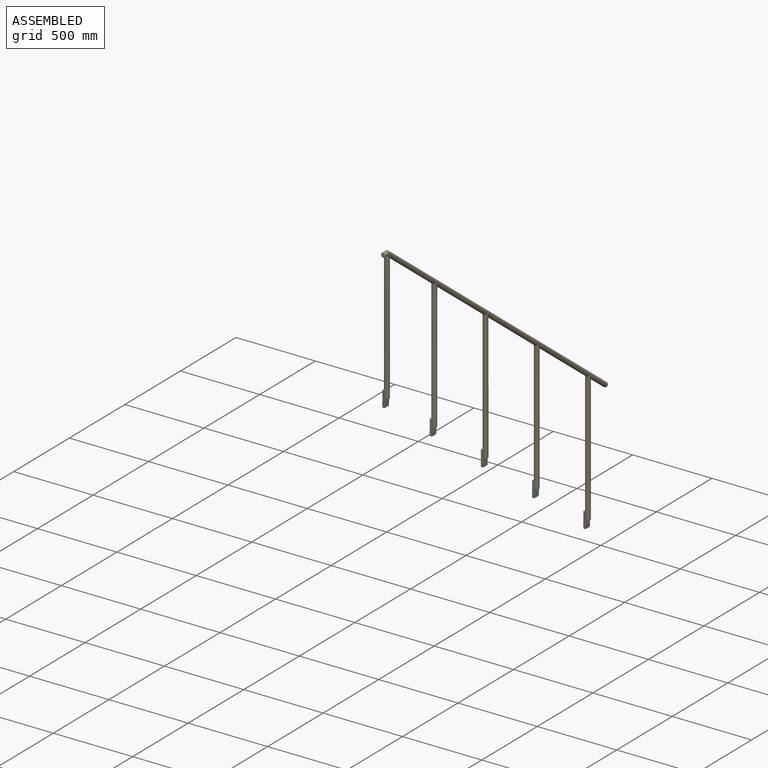
[diagram: assembled view]
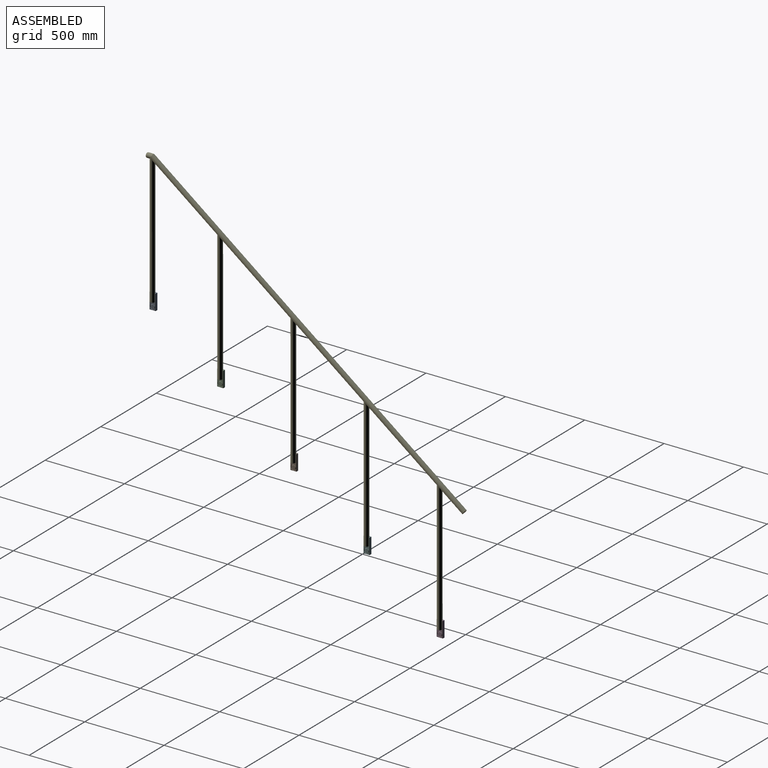
[diagram: assembled view, second angle]
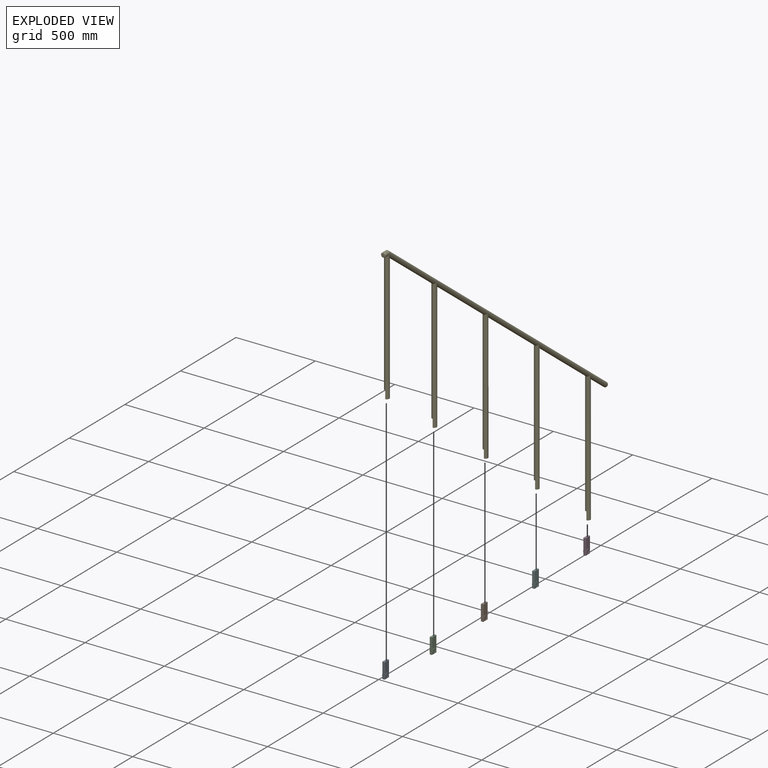
[diagram: exploded view]
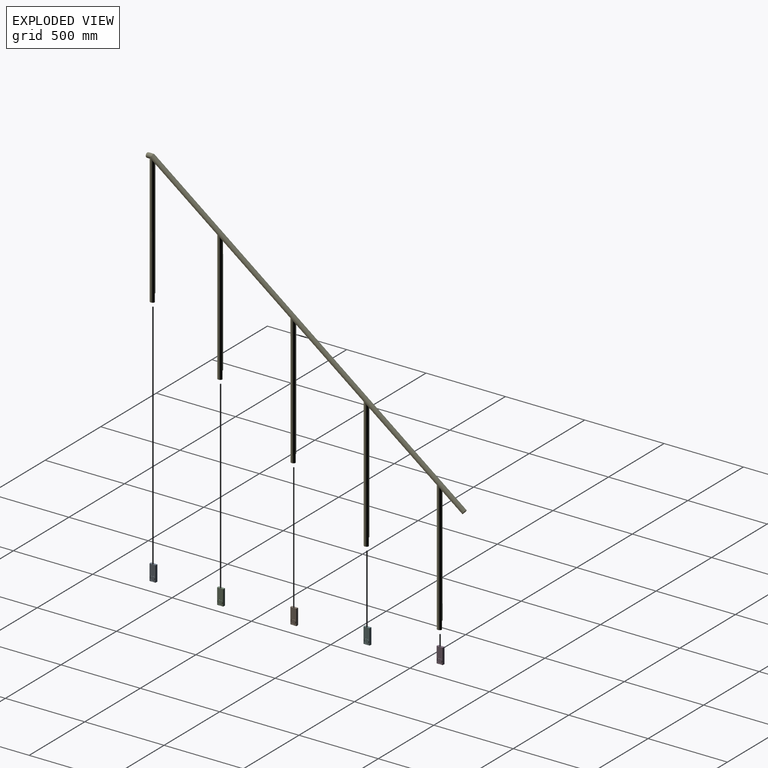
[diagram: exploded view, second angle]
ASSEMBLY  parts=6 mates=5
PART A: 18 faces, bbox 20x40x100 mm
  f0: plane 40x15mm, normal (0,0,1), area 598.3mm2, adj f1,f3,f4,f5,f7,f10
  f1: plane 98x13mm, normal (0,-1,0), area 1274mm2, adj f0,f4,f10,f12
  f2: plane 36x13mm, normal (0,0,-1), area 468mm2, adj f4,f6,f9,f12
  f3: plane 98x13mm, normal (0,1,0), area 1274mm2, adj f0,f4,f6,f7
  f4: plane 100x40mm, normal (1,0,0), area 3291.4mm2, adj f0,f1,f2,f3,f6,f12,f15
  f5: plane 98x36mm, normal (-1,0,0), area 2620.1mm2, adj f0,f7,f9,f10,f13
  f6: cylinder r=2mm len=13mm, axis (1,0,0), area 40.8mm2, adj f2,f3,f4,f8
  f7: cylinder r=2mm len=98mm, axis (0,0,1), area 307.9mm2, adj f0,f3,f5,f8
  f8: sphere r=2mm, area 6.3mm2, adj f6,f7,f9
  f9: cylinder r=2mm len=36mm, axis (0,1,0), area 113.1mm2, adj f2,f5,f8,f11
  f10: cylinder r=2mm len=98mm, axis (0,0,-1), area 307.9mm2, adj f0,f1,f5,f11
  f11: sphere r=2mm, area 6.3mm2, adj f9,f10,f12
  f12: cylinder r=2mm len=13mm, axis (-1,0,0), area 40.8mm2, adj f1,f2,f4,f11
  f13: torus R=17mm, axis (1,0,0), area 310.4mm2, adj f5,f17
  f14: plane 26x26mm, normal (-1,0,0), area 530.9mm2, adj f17
  f15: cylinder r=15mm len=30mm, axis (-1,0,0), area 471.2mm2, adj f4,f16
  f16: plane 30x30mm, normal (1,0,0), area 706.9mm2, adj f15
  f17: cone r=13mm half-angle=45deg, axis (1,0,0), area 248.8mm2, adj f13,f14
PART B: same geometry as A
PART C: same geometry as A
PART D: same geometry as A
PART E: 25 faces, bbox 32.5x2009.8x2223.7 mm
  f0: plane 30x15mm, normal (0,0,-1), area 353.4mm2, adj f1,f23
  f1: cylinder r=15mm len=826.43mm, axis (0,0,-1), area 74173.2mm2, adj f0,f10,f11,f23,f24
  f2: plane 30x15mm, normal (0,0,-1), area 353.4mm2, adj f3,f21
  f3: cylinder r=15mm len=826.43mm, axis (0,0,-1), area 74400.6mm2, adj f2,f11,f21,f22
  f4: plane 30x15mm, normal (0,0,-1), area 353.4mm2, adj f5,f19
  f5: cylinder r=15mm len=826.43mm, axis (0,0,-1), area 74400.7mm2, adj f4,f11,f19,f20
  f6: plane 30x15mm, normal (0,0,-1), area 353.4mm2, adj f7,f17
  f7: cylinder r=15mm len=826.43mm, axis (0,0,-1), area 74400.7mm2, adj f6,f11,f17,f18
  f8: cylinder r=15mm len=826.43mm, axis (0,0,-1), area 74400.7mm2, adj f11,f13,f15,f16
  f9: plane 20x20mm, normal (0,-1,0), area 314.2mm2, adj f14
  f10: cylinder r=15mm len=34.72mm, axis (0,-1,0), area 2494.5mm2, adj f1,f11,f14
  f11: cylinder r=15mm len=1988.28mm, axis (0,-0.79,0.61), area 227804.2mm2, adj f1,f3,f5,f7,f8,f10,f12
  f12: plane 30x23.85mm, normal (0,0.79,-0.61), area 706.9mm2, adj f11
  f13: plane 30x15mm, normal (0,0,-1), area 353.4mm2, adj f8,f15
  f14: torus R=10mm, axis (0,1,0), area 650.6mm2, adj f9,f10
  f15: plane 50x30mm, normal (-1,0,0), area 1500mm2, adj f8,f13,f16
  f16: plane 30x15mm, normal (0,0,-1), area 353.4mm2, adj f8,f15
  f17: plane 50x30mm, normal (-1,0,0), area 1500mm2, adj f6,f7,f18
  f18: plane 30x15mm, normal (0,0,-1), area 353.4mm2, adj f7,f17
  f19: plane 50x30mm, normal (-1,0,0), area 1500mm2, adj f4,f5,f20
  f20: plane 30x15mm, normal (0,0,-1), area 353.4mm2, adj f5,f19
  f21: plane 50x30mm, normal (-1,0,0), area 1500mm2, adj f2,f3,f22
  f22: plane 30x15mm, normal (0,0,-1), area 353.4mm2, adj f3,f21
  f23: plane 50x30mm, normal (-1,0,0), area 1500mm2, adj f0,f1,f24
  f24: plane 30x15mm, normal (0,0,-1), area 353.4mm2, adj f1,f23
PART F: same geometry as A
PLACE A rot(axis=(0,0,1),180deg) t=(-2172.29,-6413.69,501.1)mm
PLACE B rot(axis=(0,0,1),180deg) t=(-2172.29,-5526.18,-176.21)mm
PLACE C rot(axis=(0,0,1),180deg) t=(-2172.29,-5987.25,175.66)mm
PLACE D rot(axis=(0,0,1),180deg) t=(-2172.29,-4604.03,-879.96)mm
PLACE E t=(-2172.29,2444.02,-811.44)mm
PLACE F rot(axis=(0,0,1),180deg) t=(-2172.29,-5065.11,-528.09)mm
MATE fastened A.f0 <-> E.f1  axis (0,0,1) through (-2172.29,-2393.48,66.24)mm
MATE fastened C.f0 <-> E.f3  axis (0,0,1) through (-2172.29,-1967.04,-259.2)mm
MATE fastened D.f0 <-> E.f8  axis (0,0,1) through (-2172.29,-583.83,-1314.82)mm
MATE fastened F.f0 <-> E.f7  axis (0,0,1) through (-2172.29,-1044.9,-962.95)mm
MATE fastened B.f0 <-> E.f5  axis (0,0,1) through (-2172.29,-1505.97,-611.07)mm
